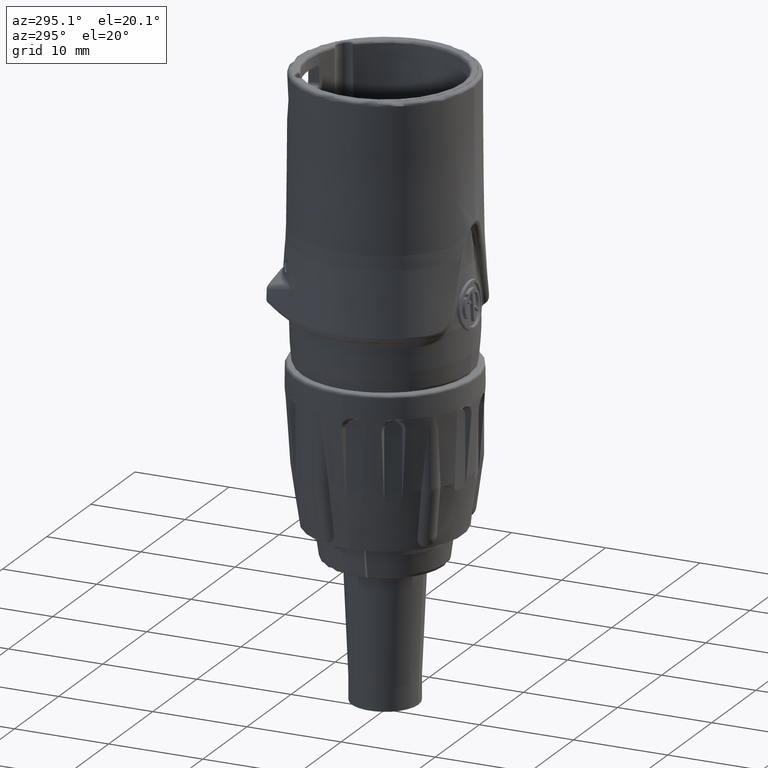
[diagram: clean part render]
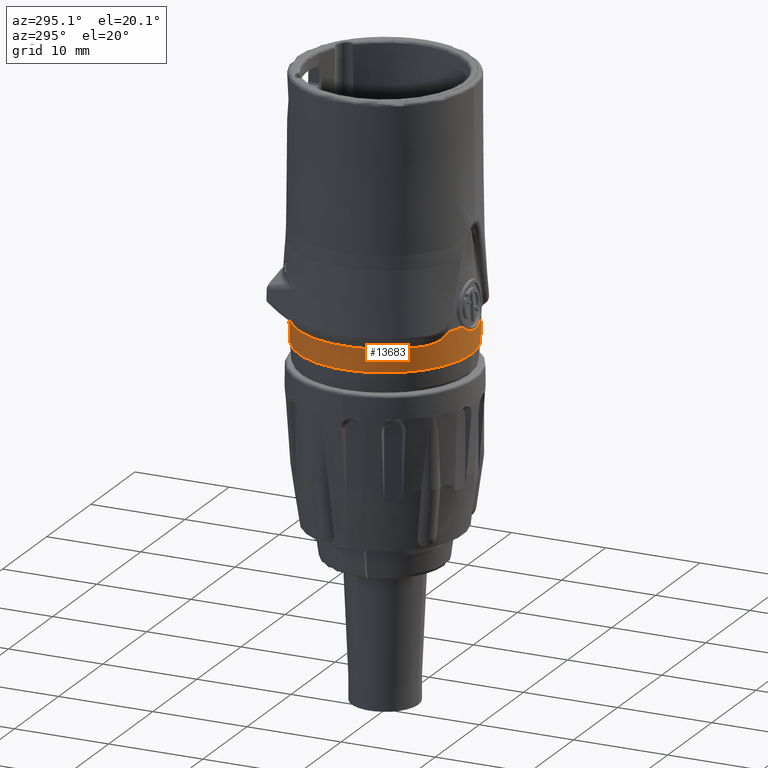
[diagram: same view with one face highlighted and labeled with its STEP entity id]
A machine part, auxiliary view. The second image highlights one B-rep face of the part: STEP entity #13683.
In plain terms, the highlighted face is a freeform B-spline surface patch.
Its self-contained STEP definition (entity closure, byte-faithful):
#2951=CARTESIAN_POINT('',(-1.835863104642E0,-9.040226547177E0,
-9.474312827117E0));
#2976=CARTESIAN_POINT('',(1.835863104642E0,-9.040226547177E0,
-9.474312827117E0));
#2992=CARTESIAN_POINT('',(1.835863104642E0,-9.040226547177E0,
-9.474312827117E0));
#2993=CARTESIAN_POINT('',(1.735073991507E0,-9.068042269803E0,
-9.583353201242E0));
#2994=CARTESIAN_POINT('',(1.513456822589E0,-9.121363702548E0,
-9.784386648233E0));
#2995=CARTESIAN_POINT('',(1.124923894059E0,-9.188953717690E0,
-1.002533671041E1));
#2996=CARTESIAN_POINT('',(7.023540700220E-1,-9.237352638022E0,
-1.019125529105E1));
#2997=CARTESIAN_POINT('',(2.480692008981E-1,-9.263540804467E0,
-1.027899573941E1));
#2998=CARTESIAN_POINT('',(-2.044561181360E-1,-9.264684316821E0,
-1.028279218463E1));
#2999=CARTESIAN_POINT('',(-6.581808209887E-1,-9.241049795329E0,
-1.020372480089E1));
#3000=CARTESIAN_POINT('',(-1.089096969582E0,-9.194187812128E0,
-1.004357176920E1));
#3001=CARTESIAN_POINT('',(-1.493056165171E0,-9.125883127426E0,
-9.801059772340E0));
#3002=CARTESIAN_POINT('',(-1.728413473810E0,-9.069880435722E0,
-9.590558992810E0));
#3003=CARTESIAN_POINT('',(-1.835863104642E0,-9.040226547177E0,
-9.474312827117E0));
#3005=CARTESIAN_POINT('',(0.E0,0.E0,-9.474312827117E0));
#3006=DIRECTION('',(0.E0,0.E0,1.E0));
#3007=DIRECTION('',(1.990148541903E-1,-9.799964733669E-1,0.E0));
#3008=AXIS2_PLACEMENT_3D('',#3005,#3006,#3007);
#3010=CARTESIAN_POINT('',(3.649485496326E0,-8.472151142146E0,
-9.474312827116E0));
#3011=CARTESIAN_POINT('',(3.676500915414E0,-8.462293730304E0,
-9.499065911819E0));
#3012=CARTESIAN_POINT('',(3.732119137698E0,-8.441464996991E0,
-9.548145098630E0));
#3013=CARTESIAN_POINT('',(3.816005759146E0,-8.408524830640E0,
-9.616964168180E0));
#3014=CARTESIAN_POINT('',(3.913553666737E0,-8.368358311594E0,
-9.690880519681E0));
#3015=CARTESIAN_POINT('',(4.021794326875E0,-8.321451248179E0,
-9.765571816061E0));
#3016=CARTESIAN_POINT('',(4.140974191423E0,-8.267111908663E0,
-9.840019985460E0));
#3017=CARTESIAN_POINT('',(4.228083945482E0,-8.225292424148E0,
-9.888924889577E0));
#3018=CARTESIAN_POINT('',(4.273540197809E0,-8.202860967025E0,
-9.913027928367E0));
#3020=CARTESIAN_POINT('',(-5.880524796932E0,1.128746814664E1,
-1.092398545604E1));
#3021=DIRECTION('',(-8.868614433259E-1,-4.620354751986E-1,0.E0));
#3022=DIRECTION('',(4.602772907231E-1,-8.834866677832E-1,-8.715574274765E-2));
#3023=AXIS2_PLACEMENT_3D('',#3020,#3021,#3022);
#3025=CARTESIAN_POINT('',(0.E0,0.E0,-1.284141179649E1));
#3026=DIRECTION('',(0.E0,0.E0,-1.E0));
#3027=DIRECTION('',(0.E0,-1.E0,0.E0));
#3028=AXIS2_PLACEMENT_3D('',#3025,#3026,#3027);
#3030=CARTESIAN_POINT('',(0.E0,0.E0,-1.038679401497E1));
#3031=DIRECTION('',(0.E0,0.E0,1.E0));
#3032=DIRECTION('',(-5.305150959510E-12,1.E0,0.E0));
#3033=AXIS2_PLACEMENT_3D('',#3030,#3031,#3032);
#3035=CARTESIAN_POINT('',(-6.276930151472E0,-6.816089302246E0,
-1.038679401497E1));
#3036=CARTESIAN_POINT('',(-6.244500682327E0,-6.845953568906E0,
-1.038679403673E1));
#3037=CARTESIAN_POINT('',(-6.179636028583E0,-6.904807662197E0,
-1.038634187453E1));
#3038=CARTESIAN_POINT('',(-6.083800066267E0,-6.989326300782E0,
-1.038433591461E1));
#3039=CARTESIAN_POINT('',(-5.985338303289E0,-7.073722799882E0,
-1.038082291152E1));
#3040=CARTESIAN_POINT('',(-5.885968363153E0,-7.156450955716E0,
-1.037567869111E1));
#3041=CARTESIAN_POINT('',(-5.785324038758E0,-7.237831694439E0,
-1.036868035942E1));
#3042=CARTESIAN_POINT('',(-5.683159476157E0,-7.318040741570E0,
-1.035956854652E1));
#3043=CARTESIAN_POINT('',(-5.577015186687E0,-7.398906669660E0,
-1.034787900589E1));
#3044=CARTESIAN_POINT('',(-5.463822238359E0,-7.482441166058E0,
-1.033278644349E1));
#3045=CARTESIAN_POINT('',(-5.342529946003E0,-7.568924104748E0,
-1.031327130071E1));
#3046=CARTESIAN_POINT('',(-5.213451388232E0,-7.657603283333E0,
-1.028844988917E1));
#3047=CARTESIAN_POINT('',(-5.078579700504E0,-7.746630246753E0,
-1.025741401018E1));
#3048=CARTESIAN_POINT('',(-4.942205499092E0,-7.832958259717E0,
-1.022021066650E1));
#3049=CARTESIAN_POINT('',(-4.806576446527E0,-7.915223241969E0,
-1.017700081987E1));
#3050=CARTESIAN_POINT('',(-4.673190727244E0,-7.992665446554E0,
-1.012773584655E1));
#3051=CARTESIAN_POINT('',(-4.544893010216E0,-8.063916560435E0,
-1.007328848344E1));
#3052=CARTESIAN_POINT('',(-4.424588227039E0,-8.127852803112E0,
-1.001537704186E1));
#3053=CARTESIAN_POINT('',(-4.312042156013E0,-8.185141479305E0,
-9.954613114558E0));
#3054=CARTESIAN_POINT('',(-4.205152644750E0,-8.237263569985E0,
-9.890532830022E0));
#3055=CARTESIAN_POINT('',(-4.101454968189E0,-8.285666607503E0,
-9.822066457595E0));
#3056=CARTESIAN_POINT('',(-3.998905792870E0,-8.331350551521E0,
-9.747562643247E0));
#3057=CARTESIAN_POINT('',(-3.899486456916E0,-8.373499838911E0,
-9.668332682338E0));
#3058=CARTESIAN_POINT('',(-3.798533562496E0,-8.414125015529E0,
-9.580623020201E0));
#3059=CARTESIAN_POINT('',(-3.725841997051E0,-8.441623631374E0,
-9.511458398081E0));
#3060=CARTESIAN_POINT('',(-3.688753796663E0,-8.455127721736E0,
-9.474312827121E0));
#3062=CARTESIAN_POINT('',(0.E0,0.E0,-9.474312827117E0));
#3063=DIRECTION('',(0.E0,0.E0,1.E0));
#3064=DIRECTION('',(-3.998755665004E-1,-9.165694361673E-1,0.E0));
#3065=AXIS2_PLACEMENT_3D('',#3062,#3063,#3064);
#3117=CARTESIAN_POINT('',(0.E0,-1.272743136099E1,-1.092398545604E1));
#3118=DIRECTION('',(1.E0,0.E0,0.E0));
#3119=DIRECTION('',(0.E0,9.961946980917E-1,-8.715574274766E-2));
#3120=AXIS2_PLACEMENT_3D('',#3117,#3118,#3119);
#3122=CARTESIAN_POINT('',(0.E0,0.E0,-1.284141179649E1));
#3123=DIRECTION('',(0.E0,0.E0,-1.E0));
#3124=DIRECTION('',(4.620379477864E-1,-8.868601551571E-1,0.E0));
#3125=AXIS2_PLACEMENT_3D('',#3122,#3123,#3124);
#8208=VERTEX_POINT('',#2951);
#8209=VERTEX_POINT('',#2976);
#8299=CARTESIAN_POINT('',(3.064556628648E-13,-9.188851997028E0,
-1.284141179649E1));
#8300=VERTEX_POINT('',#8299);
#8307=CARTESIAN_POINT('',(-3.688753340880E0,-8.455127888999E0,
-9.474312388770E0));
#8308=VERTEX_POINT('',#8307);
#8755=CARTESIAN_POINT('',(0.E0,9.188851997028E0,-1.284141179649E1));
#8756=VERTEX_POINT('',#8755);
#8982=CARTESIAN_POINT('',(4.245598319219E0,-8.149226707800E0,
-1.284141179649E1));
#8983=VERTEX_POINT('',#8982);
#8984=CARTESIAN_POINT('',(-4.915757731427E-11,9.266009146480E0,
-1.038679401497E1));
#8985=CARTESIAN_POINT('',(-6.276930151494E0,-6.816089302226E0,
-1.038679401497E1));
#8986=VERTEX_POINT('',#8984);
#8987=VERTEX_POINT('',#8985);
#8989=VERTEX_POINT('',#3010);
#8990=VERTEX_POINT('',#3018);
#13637=CARTESIAN_POINT('',(4.262186018481E0,-8.181067149653E0,
-9.474312827117E0));
#13638=CARTESIAN_POINT('',(4.296426045339E0,-8.246789283251E0,
-1.059649747486E1));
#13639=CARTESIAN_POINT('',(4.290885826530E0,-8.236155091804E0,
-1.172106244935E1));
#13640=CARTESIAN_POINT('',(4.245597857312E0,-8.149226948445E0,
-1.284141179649E1));
#13641=CARTESIAN_POINT('',(-1.498209804918E0,-1.118212778029E1,
-9.474312827117E0));
#13642=CARTESIAN_POINT('',(-1.510245587433E0,-1.127195876229E1,
-1.059649747486E1));
#13643=CARTESIAN_POINT('',(-1.508298133684E0,-1.125742363070E1,
-1.172106244935E1));
#13644=CARTESIAN_POINT('',(-1.492378866146E0,-1.113860763897E1,
-1.284141179649E1));
#13645=CARTESIAN_POINT('',(-7.415171325727E0,-8.502931760538E0,
-9.474312827116E0));
#13646=CARTESIAN_POINT('',(-7.474740679163E0,-8.571239575022E0,
-1.059649747486E1));
#13647=CARTESIAN_POINT('',(-7.465102040335E0,-8.560187006629E0,
-1.172106244935E1));
#13648=CARTESIAN_POINT('',(-7.386311943121E0,-8.469838882414E0,
-1.284141179649E1));
#13649=CARTESIAN_POINT('',(-8.960034112876E0,-2.194055163245E0,
-9.474312827117E0));
#13650=CARTESIAN_POINT('',(-9.032014032884E0,-2.211680979526E0,
-1.059649747486E1));
#13651=CARTESIAN_POINT('',(-9.020367298249E0,-2.208829028525E0,
-1.172106244935E1));
#13652=CARTESIAN_POINT('',(-8.925162221011E0,-2.185516037899E0,
-1.284141179649E1));
#13653=CARTESIAN_POINT('',(-1.050489690002E1,4.114821434047E0,
-9.474312827116E0));
#13654=CARTESIAN_POINT('',(-1.058928738660E1,4.147877615970E0,
-1.059649747486E1));
#13655=CARTESIAN_POINT('',(-1.057563255616E1,4.142528949580E0,
-1.172106244935E1));
#13656=CARTESIAN_POINT('',(-1.046401249890E1,4.098806806616E0,
-1.284141179649E1));
#13657=CARTESIAN_POINT('',(-6.495269428667E0,9.224754162755E0,
-9.474312827117E0));
#13658=CARTESIAN_POINT('',(-6.547448802988E0,9.298860696096E0,
-1.059649747486E1));
#13659=CARTESIAN_POINT('',(-6.539005902162E0,9.286869864091E0,
-1.172106244935E1));
#13660=CARTESIAN_POINT('',(-6.469990246658E0,9.188851997028E0,
-1.284141179649E1));
#13661=CARTESIAN_POINT('',(0.E0,9.224754162755E0,-9.474312827117E0));
#13662=CARTESIAN_POINT('',(0.E0,9.298860696096E0,-1.059649747486E1));
#13663=CARTESIAN_POINT('',(0.E0,9.286869864091E0,-1.172106244935E1));
#13664=CARTESIAN_POINT('',(0.E0,9.188851997028E0,-1.284141179649E1));
#13665=(BOUNDED_SURFACE()B_SPLINE_SURFACE(3,3,((#13637,#13638,#13639,#13640),(
#13641,#13642,#13643,#13644),(#13645,#13646,#13647,#13648),(#13649,#13650,
#13651,#13652),(#13653,#13654,#13655,#13656),(#13657,#13658,#13659,#13660),(
#13661,#13662,#13663,#13664)),.UNSPECIFIED.,.F.,.F.,.F.)B_SPLINE_SURFACE_WITH_KNOTS((4,3,4),(4,4),(0.E0,1.E0,2.E0),(0.E0,1.E0),.UNSPECIFIED.)GEOMETRIC_REPRESENTATION_ITEM()RATIONAL_B_SPLINE_SURFACE(((1.238433411592E0,1.236012134586E0,
1.236012134586E0,1.238433411592E0),(9.224801799878E-1,9.206766271874E-1,
9.206766271874E-1,9.224801799878E-1),(9.224801799878E-1,9.206766271874E-1,
9.206766271874E-1,9.224801799878E-1),(1.238433411592E0,1.236012134586E0,
1.236012134586E0,1.238433411592E0),(9.224801799878E-1,9.206766271874E-1,
9.206766271874E-1,9.224801799878E-1),(9.224801799878E-1,9.206766271874E-1,
9.206766271874E-1,9.224801799878E-1),(1.238433411592E0,1.236012134586E0,
1.236012134586E0,1.238433411592E0)))REPRESENTATION_ITEM('')SURFACE());
#13666=ORIENTED_EDGE('',*,*,#13628,.F.);
#13667=ORIENTED_EDGE('',*,*,#13237,.T.);
#13669=ORIENTED_EDGE('',*,*,#13668,.T.);
#13671=ORIENTED_EDGE('',*,*,#13670,.F.);
#13673=ORIENTED_EDGE('',*,*,#13672,.T.);
#13675=ORIENTED_EDGE('',*,*,#13674,.T.);
#13677=ORIENTED_EDGE('',*,*,#13676,.T.);
#13678=ORIENTED_EDGE('',*,*,#12538,.T.);
#13679=ORIENTED_EDGE('',*,*,#12654,.T.);
#13680=ORIENTED_EDGE('',*,*,#13241,.T.);
#13681=EDGE_LOOP('',(#13666,#13667,#13669,#13671,#13673,#13675,#13677,#13678,
#13679,#13680));
#13682=FACE_OUTER_BOUND('',#13681,.F.);
#13683=ADVANCED_FACE('',(#13682),#13665,.T.);
#3004=B_SPLINE_CURVE_WITH_KNOTS('',3,(#2992,#2993,#2994,#2995,#2996,#2997,#2998,
#2999,#3000,#3001,#3002,#3003),.UNSPECIFIED.,.F.,.F.,(4,1,1,1,1,1,1,1,1,4),
(0.E0,1.111111111111E-1,2.222222222222E-1,3.333333333333E-1,4.444444444444E-1,
5.555555555556E-1,6.666666666667E-1,7.777777777778E-1,8.888888888889E-1,1.E0),
.UNSPECIFIED.);
#3009=CIRCLE('',#3008,9.224754162755E0);
#3019=B_SPLINE_CURVE_WITH_KNOTS('',3,(#3010,#3011,#3012,#3013,#3014,#3015,#3016,
#3017,#3018),.UNSPECIFIED.,.F.,.F.,(4,1,1,1,1,1,4),(0.E0,1.666666666667E-1,
3.333333333333E-1,5.E-1,6.666666666667E-1,8.333333333333E-1,1.E0),
.UNSPECIFIED.);
#3024=CIRCLE('',#3023,2.2E1);
#3029=CIRCLE('',#3028,9.188851997028E0);
#3034=CIRCLE('',#3033,9.266009146480E0);
#3061=B_SPLINE_CURVE_WITH_KNOTS('',3,(#3035,#3036,#3037,#3038,#3039,#3040,#3041,
#3042,#3043,#3044,#3045,#3046,#3047,#3048,#3049,#3050,#3051,#3052,#3053,#3054,
#3055,#3056,#3057,#3058,#3059,#3060),.UNSPECIFIED.,.F.,.F.,(4,1,1,1,1,1,1,1,1,1,
1,1,1,1,1,1,1,1,1,1,1,1,1,4),(0.E0,4.347826086957E-2,8.695652173913E-2,
1.304347826087E-1,1.739130434783E-1,2.173913043478E-1,2.608695652174E-1,
3.043478260870E-1,3.478260869565E-1,3.913043478261E-1,4.347826086957E-1,
4.782608695652E-1,5.217391304348E-1,5.652173913043E-1,6.086956521739E-1,
6.521739130435E-1,6.956521739130E-1,7.391304347826E-1,7.826086956522E-1,
8.260869565217E-1,8.695652173913E-1,9.130434782609E-1,9.565217391304E-1,1.E0),
.UNSPECIFIED.);
#3066=CIRCLE('',#3065,9.224754162755E0);
#3121=CIRCLE('',#3120,2.2E1);
#3126=CIRCLE('',#3125,9.188851997028E0);
#12538=EDGE_CURVE('',#8986,#8987,#3034,.T.);
#12654=EDGE_CURVE('',#8987,#8308,#3061,.T.);
#13237=EDGE_CURVE('',#8209,#8989,#3009,.T.);
#13241=EDGE_CURVE('',#8308,#8208,#3066,.T.);
#13628=EDGE_CURVE('',#8209,#8208,#3004,.T.);
#13668=EDGE_CURVE('',#8989,#8990,#3019,.T.);
#13670=EDGE_CURVE('',#8983,#8990,#3024,.T.);
#13672=EDGE_CURVE('',#8983,#8300,#3126,.T.);
#13674=EDGE_CURVE('',#8300,#8756,#3029,.T.);
#13676=EDGE_CURVE('',#8756,#8986,#3121,.T.);